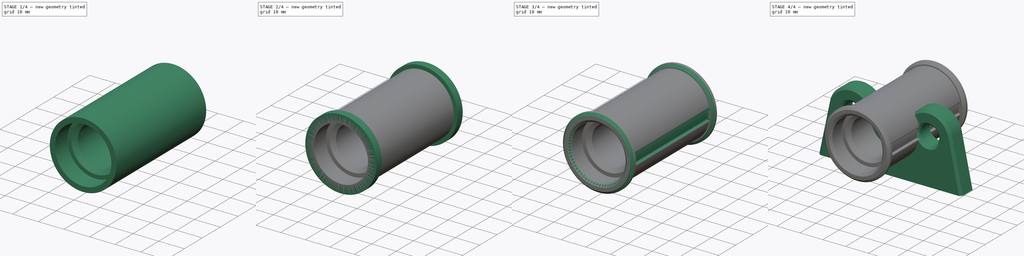
[diagram: build sequence overview — one tinted view per stage of 4, left to right]
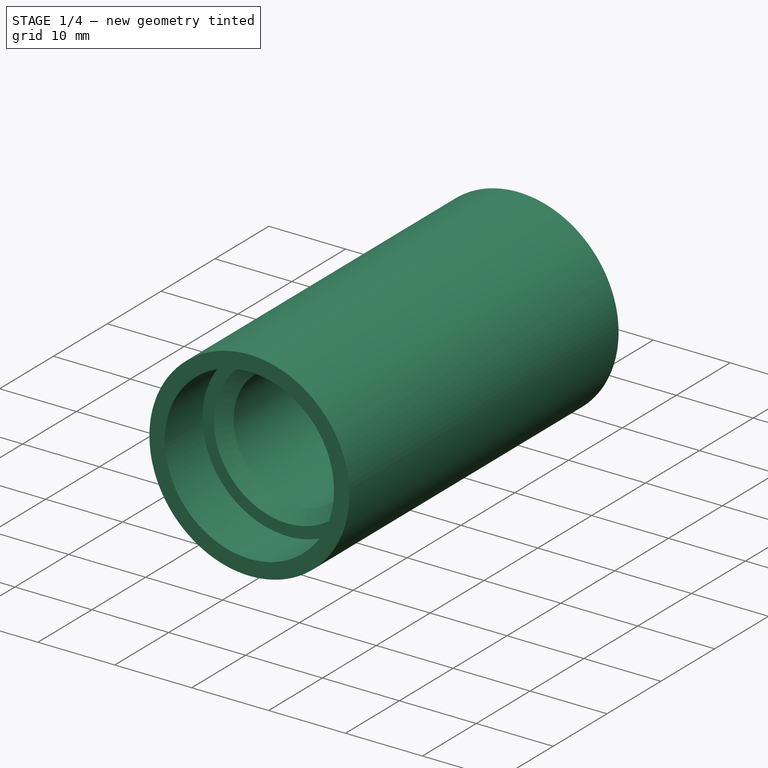
[diagram: stage 1 of 4 — iso view after this stage's code; geometry added in this stage tinted green]
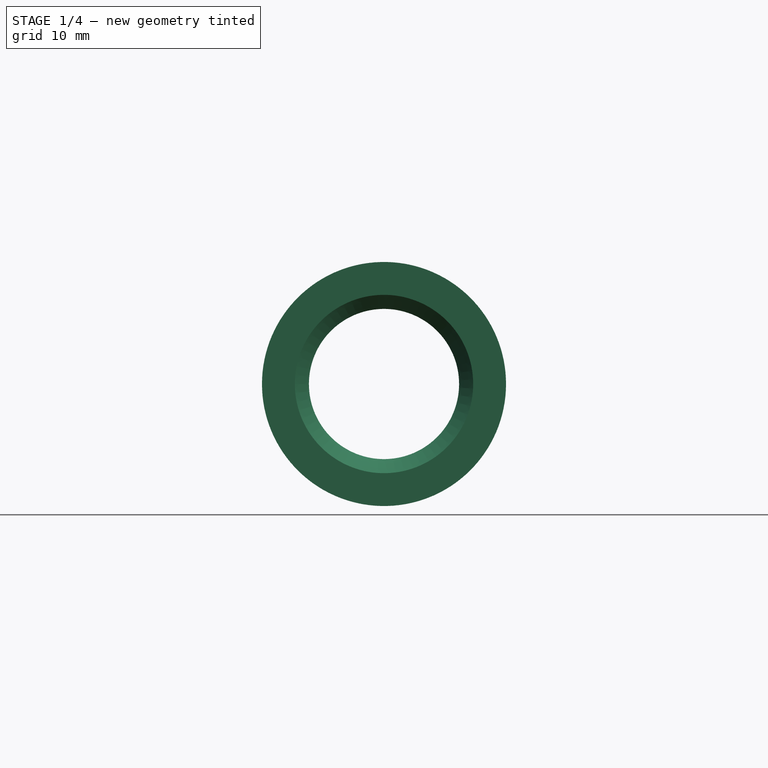
[diagram: stage 1 of 4 — front view after this stage's code; geometry added in this stage tinted green]
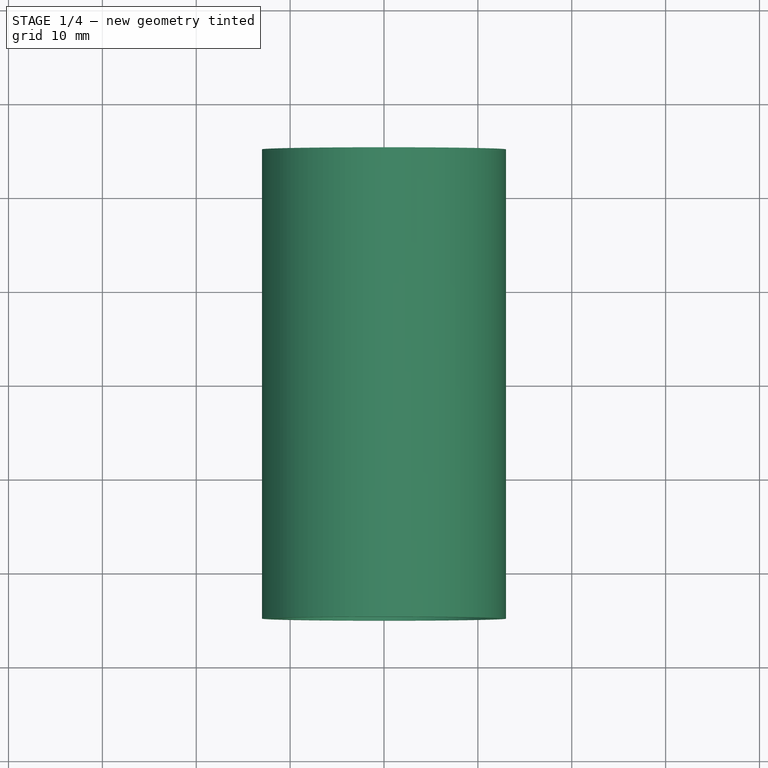
[diagram: stage 1 of 4 — top view after this stage's code; geometry added in this stage tinted green]
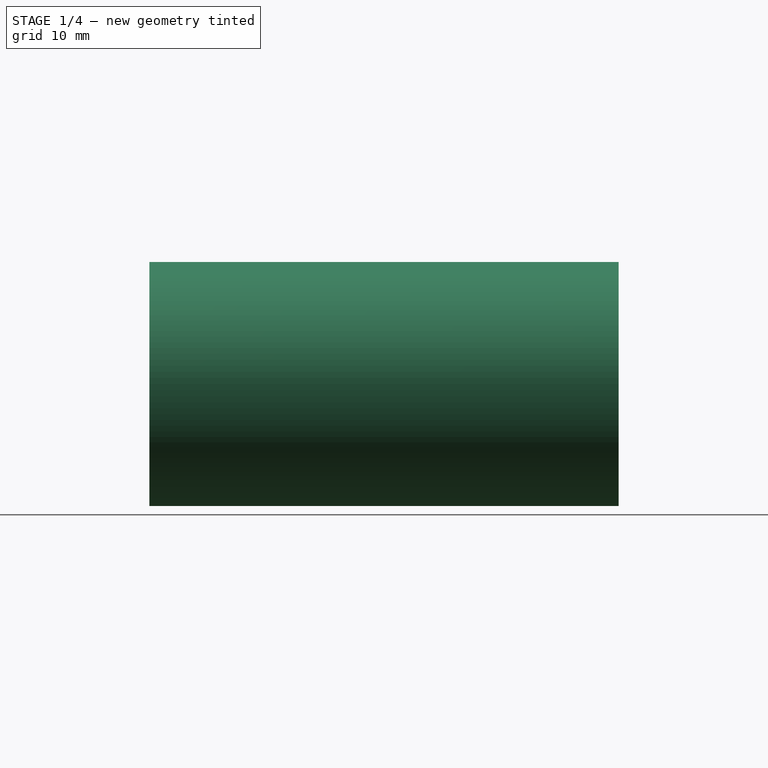
[diagram: stage 1 of 4 — right view after this stage's code; geometry added in this stage tinted green]
FCSTD DOCUMENT  (FreeCAD 2023.321R14555 (Git shallow))
Label: support-wheels-robots
License: Creative Commons Attribution-NoDerivatives
LicenseURL: http://creativecommons.org/licenses/by-nd/4.0/
objects: Sketcher::SketchObject×4, PartDesign::Chamfer×3, PartDesign::Revolution×2, App::Link×2, PartDesign::Body×2, PartDesign::Mirrored×1, PartDesign::Groove×1, PartDesign::Fillet×1, PartDesign::Pad×1, App::Part×1
note: 37 computed .brp shape members not serialized (recipe doc carries the construction recipe); baked Part::Feature solids carry a one-line shape summary decoded from their .brp

FEATURE [Sketcher::SketchObject] Sketch
  ArcFitTolerance = 1e-06
  AttachmentSupport = -> [XY_Plane]
  ExternalBSplineMaxDegree = 5
  ExternalBSplineTolerance = 0.0001
  FixShape = 1
  FullyConstrained = true
  InternalTolerance = 1e-06
  InvalidShape = false
  MakeInternals = true
  MapMode = 5
  Support = -> [XY_Plane]
  TreeRank = 11
  ValidateShape = false
  sketch-geometry (8):
    g0: LineSegment StartX=-13 StartY=-25 StartZ=0 EndX=-13 EndY=25 EndZ=0
    g1: LineSegment StartX=-13 StartY=25 StartZ=0 EndX=-11 EndY=25 EndZ=0
    g2: LineSegment StartX=-11 StartY=25 StartZ=0 EndX=-11 EndY=18 EndZ=0
    g3: LineSegment StartX=-11 StartY=18 StartZ=0 EndX=-8 EndY=18 EndZ=0
    g4: LineSegment StartX=-8 StartY=18 StartZ=0 EndX=-8 EndY=-18 EndZ=0
    g5: LineSegment StartX=-8 StartY=-18 StartZ=0 EndX=-11 EndY=-18 EndZ=0
    g6: LineSegment StartX=-11 StartY=-18 StartZ=0 EndX=-11 EndY=-25 EndZ=0
    g7: LineSegment StartX=-11 StartY=-25 StartZ=0 EndX=-13 EndY=-25 EndZ=0
  constraints (22):
    c: Coincident(g1,g0)
    c: Horizontal(g1)
    c: Coincident(g2,g1)
    c: Vertical(g2)
    c: Coincident(g3,g2)
    c: Horizontal(g3)
    c: Coincident(g4,g3)
    c: Coincident(g5,g4)
    c: Horizontal(g5)
    c: Coincident(g6,g5)
    c: Vertical(g6)
    c: Coincident(g7,g6)
    c: Coincident(g7,g0)
    c: Symmetric(g4,g3,g-1)
    c: Symmetric(g0,g0,g-1)
    c: Horizontal(g7)
    c: DistanceX(g1,g-1) = 11
    c: Equal(g7,g1)
    c: DistanceX(g0,g-1) = 13
    c: DistanceY(g0,g0) = 50
    c: DistanceY(g2,g2) = 7
    c: DistanceX(g3,g-1) = 8
FEATURE [PartDesign::Revolution] Revolution
  AddSubType = 0
  Angle = 360
  Axis = (0,1,0)
  Base = (0,0,0)
  ClaimChildren = false
  Fit = 0
  FitJoin = 0
  FixShape = 1
  InnerFit = 0
  InnerFitJoin = 0
  InvalidShape = false
  Linearize = true
  NewSolid = false
  Profile = -> Sketch
  ReferenceAxis = -> Sketch [V_Axis]
  Refine = true
  Suppress = false
  TreeRank = 12
  ValidateShape = false
  _ProfileBasedVersion = 1
FEATURE [PartDesign::Chamfer] Chamfer
  AddSubType = 0
  Angle = 45
  Base = -> Revolution [Edge9,Edge7]
  BaseFeature = -> Revolution
  ChamferType = 0
  FixShape = 1
  FlipDirection = false
  InvalidShape = false
  NewSolid = false
  Refine = true
  Size = 1.5
  Size2 = 1
  SupportTransform = false
  Suppress = false
  TreeRank = 13
  ValidateShape = false
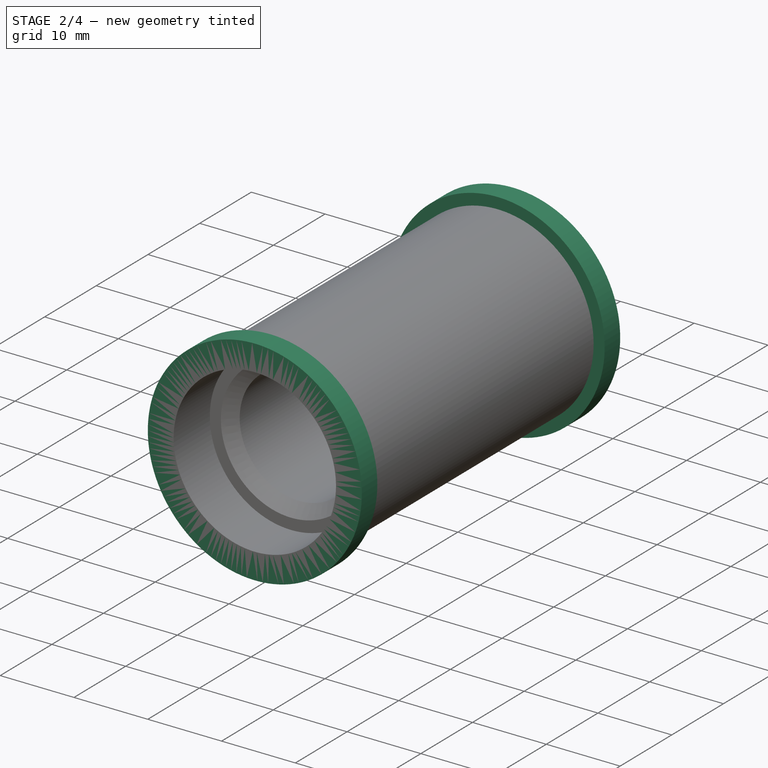
[diagram: stage 2 of 4 — iso view after this stage's code; geometry added in this stage tinted green]
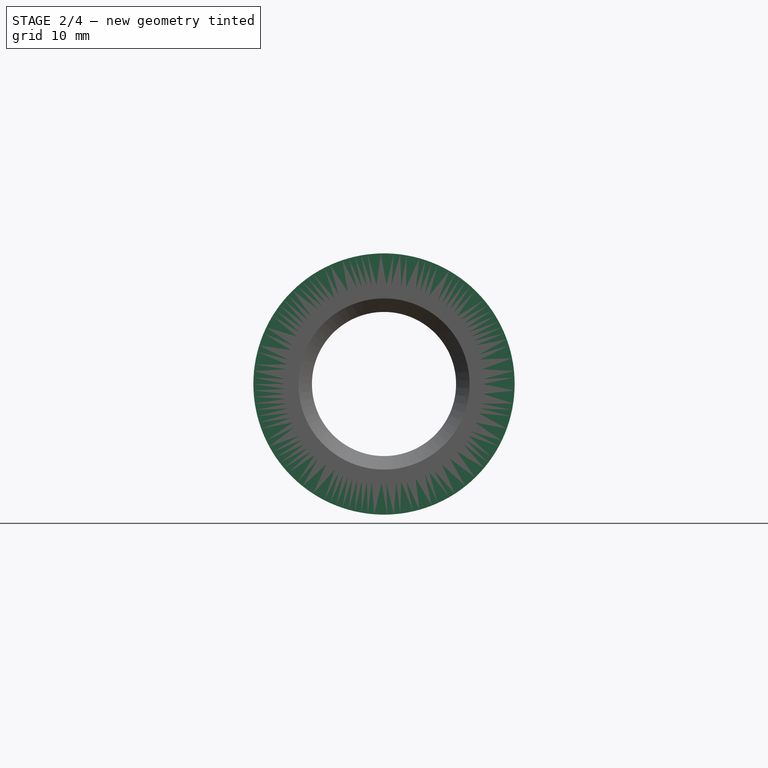
[diagram: stage 2 of 4 — front view after this stage's code; geometry added in this stage tinted green]
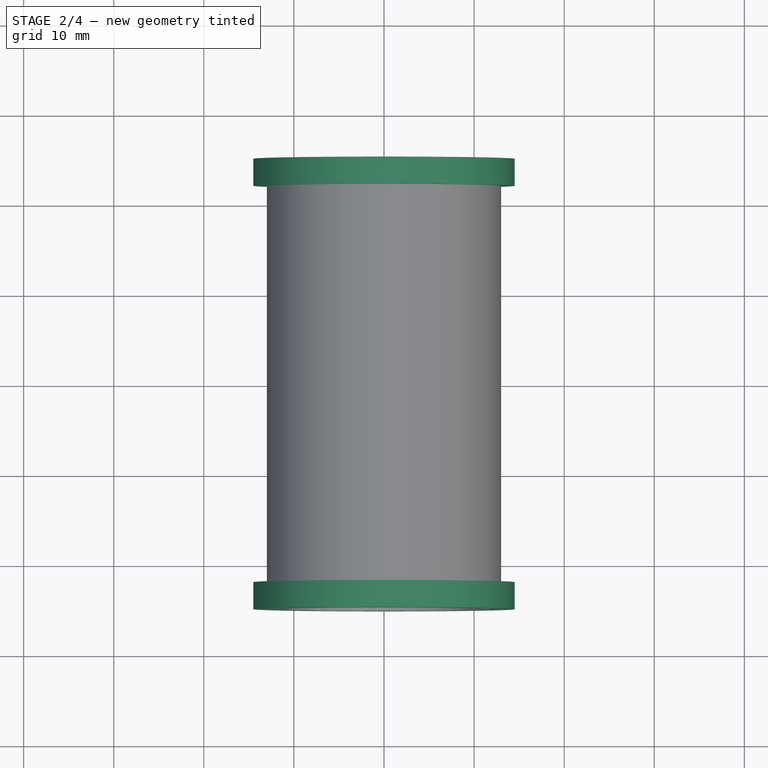
[diagram: stage 2 of 4 — top view after this stage's code; geometry added in this stage tinted green]
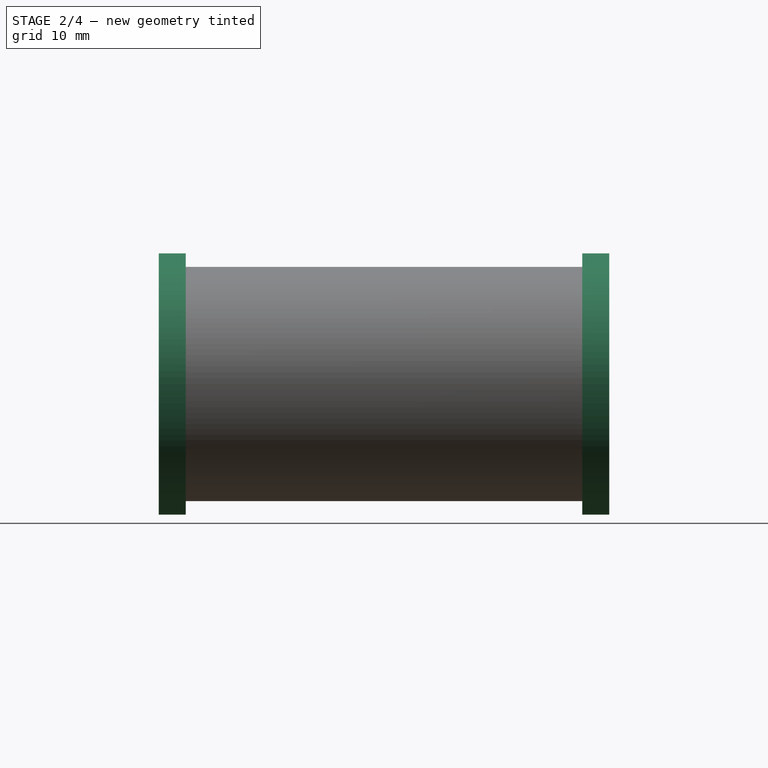
[diagram: stage 2 of 4 — right view after this stage's code; geometry added in this stage tinted green]
FEATURE [Sketcher::SketchObject] Sketch001
  ArcFitTolerance = 1e-06
  AttachmentSupport = -> [XY_Plane]
  ExternalBSplineMaxDegree = 5
  ExternalBSplineTolerance = 0.0001
  ExternalGeometry = -> [Chamfer]
  FixShape = 1
  FullyConstrained = true
  InternalTolerance = 1e-06
  InvalidShape = false
  MakeInternals = true
  MapMode = 5
  Support = -> [XY_Plane]
  TreeRank = 14
  ValidateShape = false
  sketch-geometry (4):
    g0: LineSegment StartX=-13 StartY=25 StartZ=0 EndX=-14.5 EndY=25 EndZ=0
    g1: LineSegment StartX=-14.5 StartY=25 StartZ=0 EndX=-14.5 EndY=22 EndZ=0
    g2: LineSegment StartX=-14.5 StartY=22 StartZ=0 EndX=-13 EndY=22 EndZ=0
    g3: LineSegment StartX=-13 StartY=22 StartZ=0 EndX=-13 EndY=25 EndZ=0
  constraints (11):
    c: Coincident(g0,g1)
    c: Coincident(g1,g2)
    c: Coincident(g2,g3)
    c: Coincident(g3,g0)
    c: Horizontal(g0)
    c: Horizontal(g2)
    c: Vertical(g1)
    c: Vertical(g3)
    c: Coincident(g0,g-3)
    c: DistanceX(g0,g0) = 1.5
    c: DistanceY(g1,g1) = 3
FEATURE [PartDesign::Revolution] Revolution001
  AddSubType = 0
  Angle = 360
  Axis = (0,1,0)
  Base = (0,0,0)
  BaseFeature = -> Chamfer
  ClaimChildren = false
  Fit = 0
  FitJoin = 0
  FixShape = 1
  InnerFit = 0
  InnerFitJoin = 0
  InvalidShape = false
  Linearize = true
  NewSolid = false
  Profile = -> Sketch001
  ReferenceAxis = -> Sketch001 [V_Axis]
  Refine = true
  Suppress = false
  TreeRank = 15
  ValidateShape = false
  _ProfileBasedVersion = 1
FEATURE [PartDesign::Mirrored] Mirrored
  AddSubType = 0
  BaseFeature = -> Revolution001
  CopyShape = false
  FixShape = 1
  InvalidShape = false
  MirrorPlane = -> XZ_Plane
  NewSolid = false
  OriginalSubs = -> [Revolution001]
  Originals = -> [Revolution001]
  ParallelTransform = true
  Refine = true
  SubTransform = true
  Suppress = false
  TreeRank = 16
  ValidateShape = false
  _Version = 3
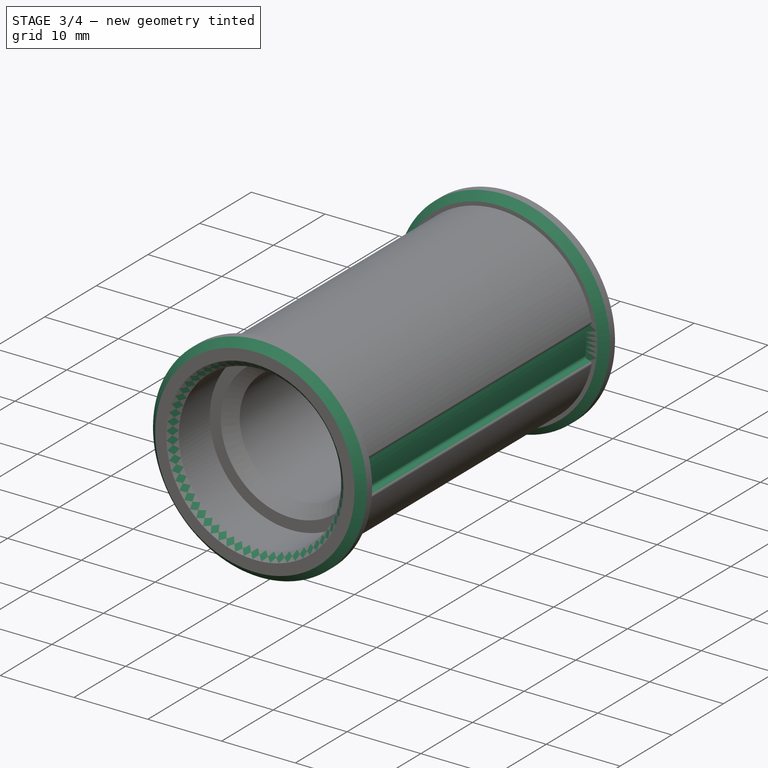
[diagram: stage 3 of 4 — iso view after this stage's code; geometry added in this stage tinted green]
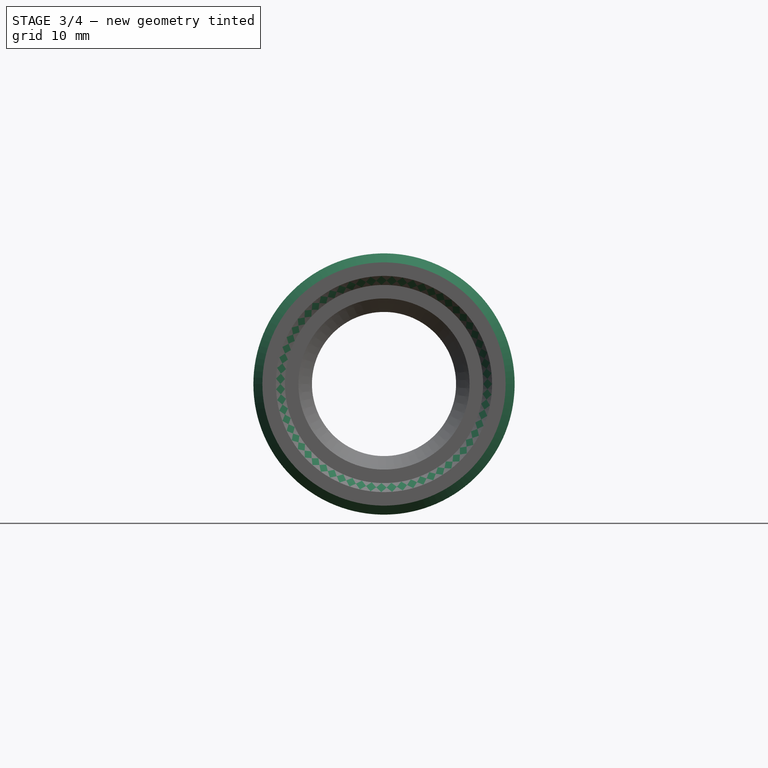
[diagram: stage 3 of 4 — front view after this stage's code; geometry added in this stage tinted green]
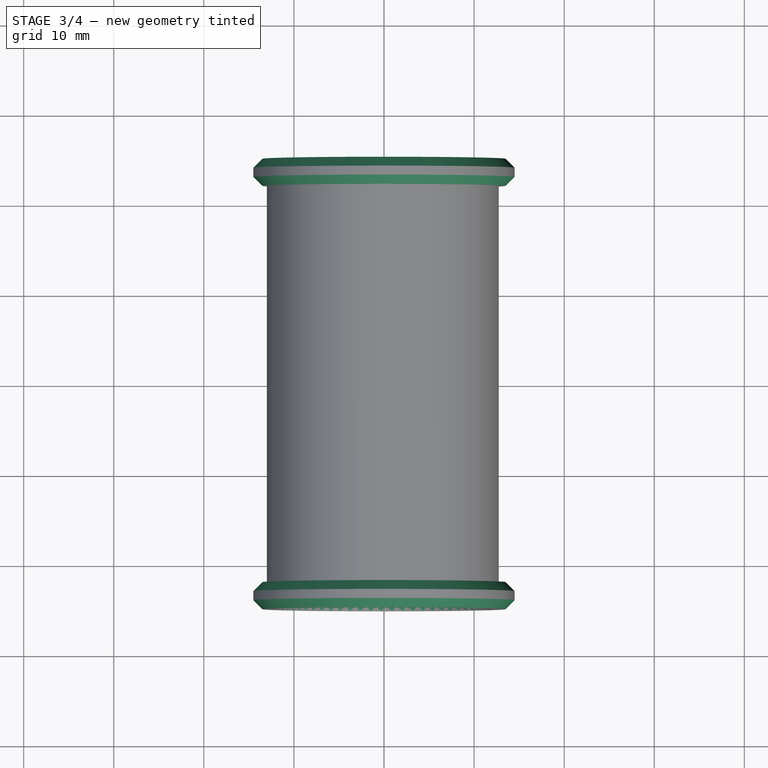
[diagram: stage 3 of 4 — top view after this stage's code; geometry added in this stage tinted green]
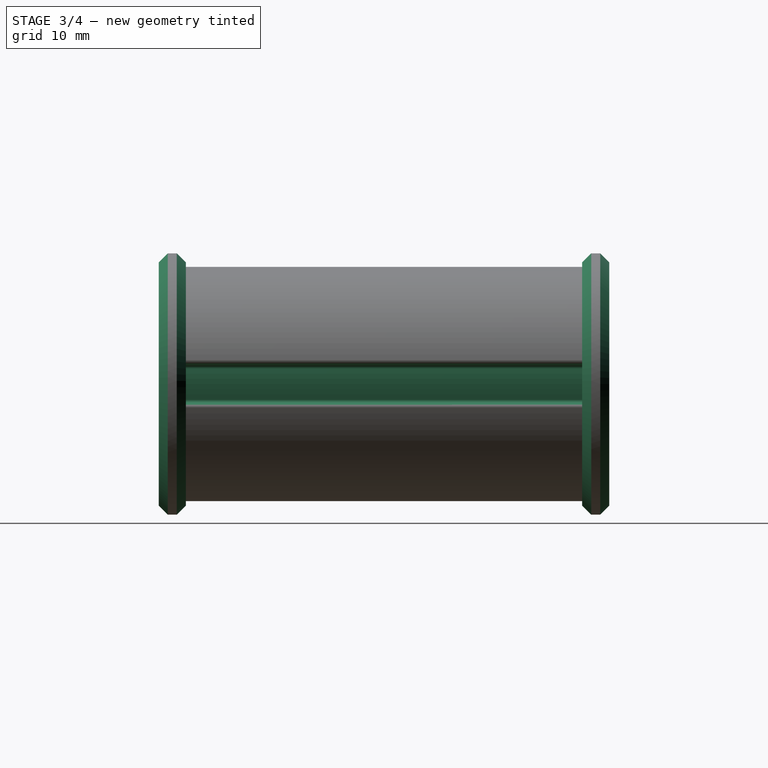
[diagram: stage 3 of 4 — right view after this stage's code; geometry added in this stage tinted green]
FEATURE [Sketcher::SketchObject] Sketch002
  ArcFitTolerance = 1e-06
  AttachmentSupport = -> [XY_Plane]
  ExternalBSplineMaxDegree = 5
  ExternalBSplineTolerance = 0.0001
  ExternalGeometry = -> [Mirrored]
  FixShape = 1
  FullyConstrained = true
  InternalTolerance = 1e-06
  InvalidShape = false
  MakeInternals = true
  MapMode = 5
  Support = -> [XY_Plane]
  TreeRank = 17
  ValidateShape = false
  sketch-geometry (5):
    g0: LineSegment StartX=12 StartY=-22 StartZ=0 EndX=12 EndY=22 EndZ=0
    g1: LineSegment StartX=12 StartY=22 StartZ=0 EndX=15 EndY=22 EndZ=0
    g2: LineSegment StartX=15 StartY=22 StartZ=0 EndX=15 EndY=-22 EndZ=0
    g3: LineSegment StartX=15 StartY=-22 StartZ=0 EndX=12 EndY=-22 EndZ=0
    g4: GeomPoint [constr] X=13.5 Y=0 Z=0
  constraints (13):
    c: Coincident(g0,g1)
    c: Coincident(g1,g2)
    c: Coincident(g2,g3)
    c: Coincident(g3,g0)
    c: Horizontal(g1)
    c: Horizontal(g3)
    c: Vertical(g0)
    c: Vertical(g2)
    c: Symmetric(g1,g0,g4)
    c: PointOnObject(g4,g-1)
    c: DistanceX(g1) = 15
    c: PointOnObject(g1,g-3)
    c: DistanceX(g1,g1) = 3
FEATURE [PartDesign::Groove] Groove
  AddSubType = 1
  Angle = 20
  Axis = (0,1,0)
  Base = (0,0,0)
  BaseFeature = -> Mirrored
  ClaimChildren = false
  Fit = 0
  FitJoin = 0
  FixShape = 1
  InnerFit = 0
  InnerFitJoin = 0
  InvalidShape = false
  Linearize = true
  Midplane = true
  NewSolid = false
  Profile = -> Sketch002
  ReferenceAxis = -> Sketch002 [V_Axis]
  Refine = true
  Suppress = false
  TreeRank = 18
  ValidateShape = false
  _ProfileBasedVersion = 1
FEATURE [PartDesign::Fillet] Fillet
  AddSubType = 0
  Base = -> Groove [Edge34,Edge30,Edge29,Edge33]
  BaseFeature = -> Groove
  FixShape = 1
  InvalidShape = false
  NewSolid = false
  Radius = 0.4
  Refine = true
  SupportTransform = false
  Suppress = false
  TreeRank = 19
  ValidateShape = false
FEATURE [PartDesign::Body] Body001  label="SupportRouleau"
  AutoGroupSolids = false
  ClaimAllChildren = false
  ExportMode = 0
  FixShape = 1
  Group = -> [Sketch003,Pad,Chamfer001]
  InvalidShape = false
  Origin = -> Origin001
  Placement = pos=(0,-32,0) rot=(0,0,1;0rad)
  SingleSolid = true
  Tip = -> Chamfer001
  TreeRank = 30
  ValidateShape = false
  _ExportChildren = -> [Pad,Chamfer001]
  _GroupVersion = 1
FEATURE [PartDesign::Chamfer] Chamfer002
  AddSubType = 0
  Angle = 45
  Base = -> Fillet [Edge31,Edge37,Edge35,Edge40,Edge12,Edge33]
  BaseFeature = -> Fillet
  ChamferType = 0
  FixShape = 1
  FlipDirection = false
  InvalidShape = false
  NewSolid = false
  Refine = true
  Size = 1
  Size2 = 1
  SupportTransform = false
  Suppress = false
  TreeRank = 36
  ValidateShape = false
FEATURE [PartDesign::Body] Body  label="Rouleau"
  AutoGroupSolids = false
  ClaimAllChildren = false
  ExportMode = 0
  FixShape = 1
  Group = -> [Sketch,Revolution,Chamfer,Sketch001,Revolution001,Mirrored,Sketch002,Groove,Fillet,Chamfer002]
  InvalidShape = false
  Origin = -> Origin
  Placement = pos=(16.89,0,0) rot=(0,0,1;0rad)
  SingleSolid = true
  Tip = -> Chamfer002
  TreeRank = 10
  ValidateShape = false
  _ExportChildren = -> [Revolution,Chamfer,Revolution001,Mirrored,Groove,Fillet,Chamfer002]
  _GroupVersion = 1
FEATURE [App::Part] Part  label="ensemble-rouleaux"
  ClaimAllChildren = false
  ExportMode = 1
  Group = -> [Body,Body001,Link,Link001]
  Origin = -> Origin002
  TreeRank = 39
  _ExportChildren = -> [Body,Body001,Link,Link001]
  _GroupVersion = 1
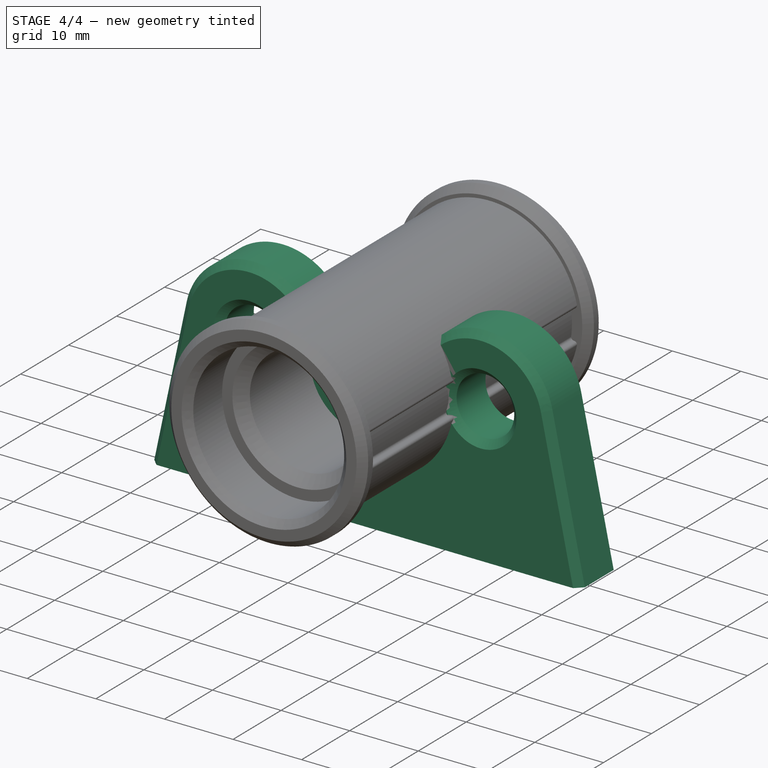
[diagram: stage 4 of 4 — iso view after this stage's code; geometry added in this stage tinted green]
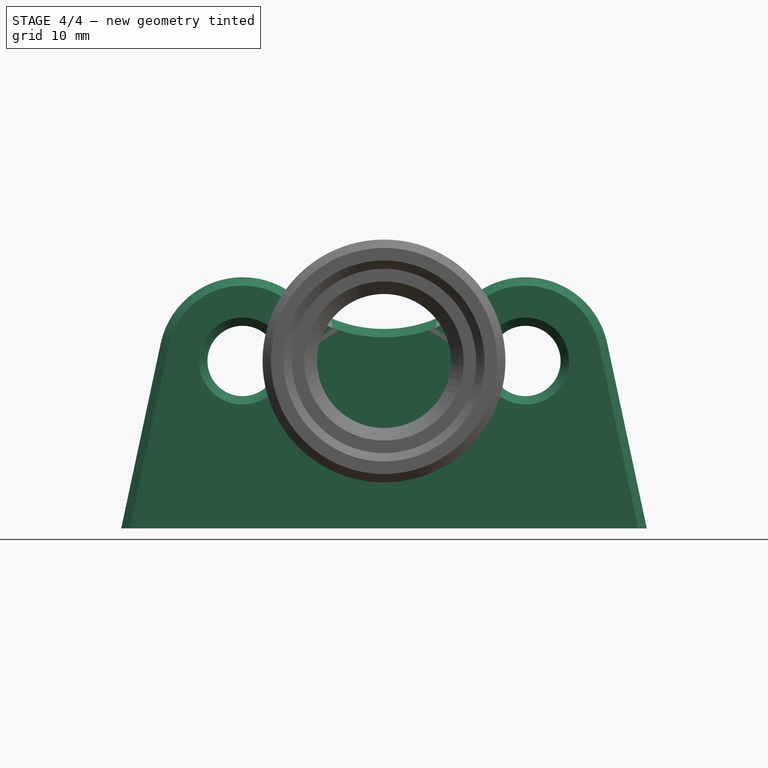
[diagram: stage 4 of 4 — front view after this stage's code; geometry added in this stage tinted green]
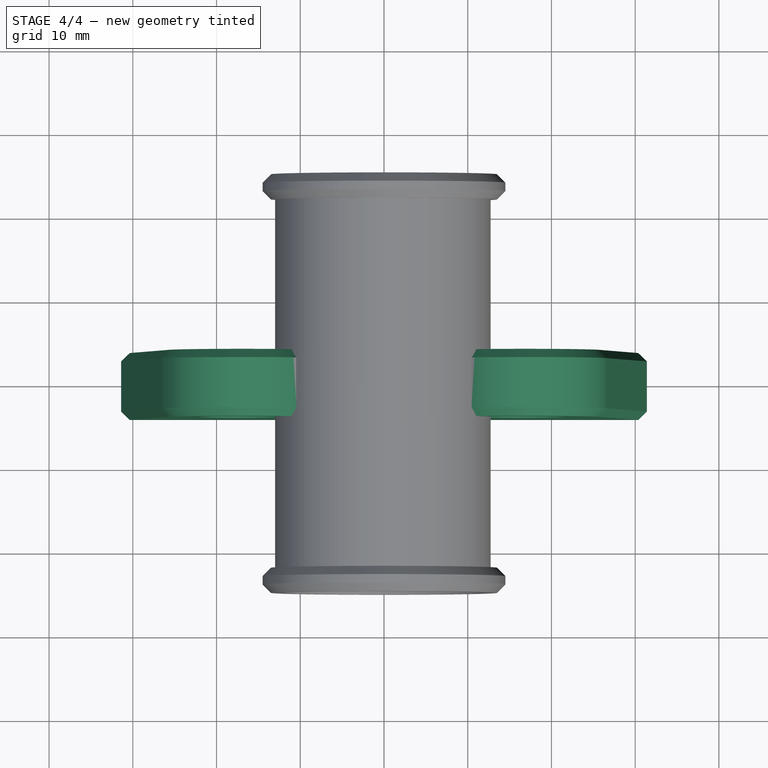
[diagram: stage 4 of 4 — top view after this stage's code; geometry added in this stage tinted green]
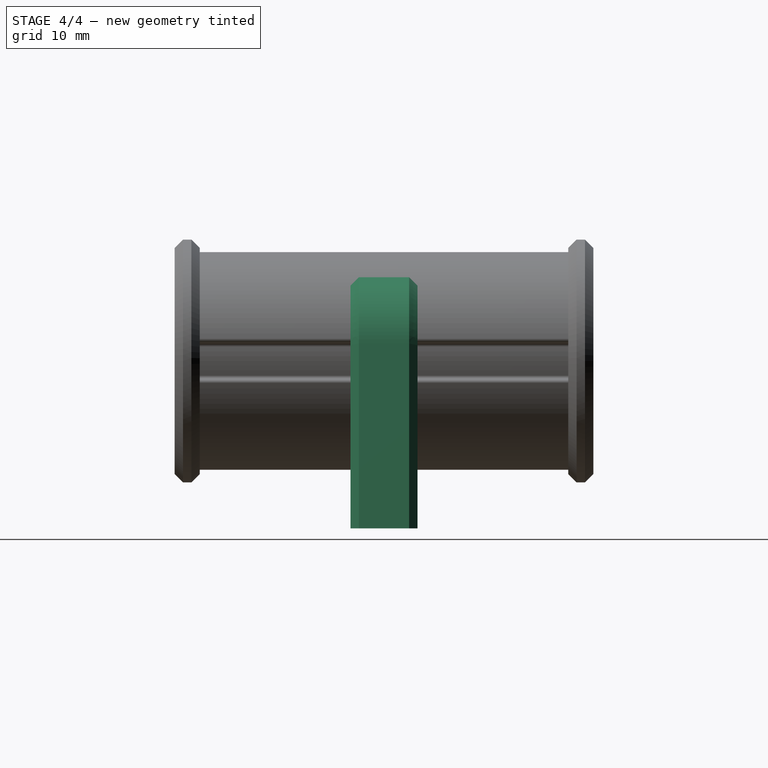
[diagram: stage 4 of 4 — right view after this stage's code; geometry added in this stage tinted green]
FEATURE [Sketcher::SketchObject] Sketch003
  ArcFitTolerance = 1e-06
  AttachmentSupport = -> [XZ_Plane001]
  ExternalBSplineMaxDegree = 5
  ExternalBSplineTolerance = 0.0001
  FixShape = 1
  FullyConstrained = true
  InternalTolerance = 1e-06
  InvalidShape = false
  MakeInternals = true
  MapMode = 5
  Placement = pos=(0,0,0) rot=(1,0,0;1.5708rad)
  Support = -> [XZ_Plane001]
  TreeRank = 31
  ValidateShape = false
  sketch-geometry (14):
    g0: Circle [constr] CenterX=-5.0515e-12 CenterY=39 CenterZ=0 NormalX=0 NormalY=0 NormalZ=1 AngleXU=0 Radius=28
    g1: Circle [constr] CenterX=-16.8893 CenterY=-8.1388e-11 CenterZ=0 NormalX=0 NormalY=0 NormalZ=1 AngleXU=0 Radius=14.5
    g2: Circle [constr] CenterX=16.8893 CenterY=8.41302e-11 CenterZ=0 NormalX=0 NormalY=0 NormalZ=1 AngleXU=0 Radius=14.5
    g3: LineSegment [constr] StartX=-17.9374 StartY=17.5 StartZ=0 EndX=17.9374 EndY=17.5 EndZ=0
    g4: LineSegment [constr] StartX=16.8893 StartY=8.41302e-11 StartZ=0 EndX=16.8893 EndY=14.5 EndZ=0
    g5: Circle CenterX=-16.8893 CenterY=-8.1388e-11 CenterZ=0 NormalX=0 NormalY=0 NormalZ=1 AngleXU=0 Radius=4.2
    g6: Circle CenterX=16.8893 CenterY=8.41302e-11 CenterZ=0 NormalX=0 NormalY=0 NormalZ=1 AngleXU=0 Radius=4.2
    g7: ArcOfCircle CenterX=-16.8893 CenterY=-8.1388e-11 CenterZ=0 NormalX=0 NormalY=0 NormalZ=1 AngleXU=0 Radius=10 StartAngle=0.869523 EndAngle=2.93105
    g8: ArcOfCircle CenterX=16.8893 CenterY=8.41302e-11 CenterZ=0 NormalX=0 NormalY=0 NormalZ=1 AngleXU=0 Radius=10 StartAngle=0.210542 EndAngle=2.27207
    g9: LineSegment StartX=-31.3893 StartY=-20 StartZ=0 EndX=31.3893 EndY=-20 EndZ=0
    g10: LineSegment StartX=-31.3893 StartY=-20 StartZ=0 EndX=-26.6685 EndY=2.0899 EndZ=0
    g11: LineSegment StartX=26.6685 StartY=2.0899 StartZ=0 EndX=31.3893 EndY=-20 EndZ=0
    g12: ArcOfCircle CenterX=-8.39118e-11 CenterY=20 CenterZ=0 NormalX=0 NormalY=0 NormalZ=1 AngleXU=0 Radius=16.1773 StartAngle=4.01112 EndAngle=5.41366
    g13: LineSegment [constr] StartX=31.3893 StartY=-20 StartZ=0 EndX=31.3893 EndY=1.492e-13 EndZ=0
  constraints (35):
    c: PointOnObject(g0,g-2)
    c: Diameter(g0) = 56
    c: Symmetric(g2,g1,g-1)
    c: Equal(g2,g1)
    c: Diameter(g2) = 29
    c: Tangent(g0,g2)
    c: PointOnObject(g3,g0)
    c: PointOnObject(g3,g0)
    c: Horizontal(g3)
    c: DistanceY(g3,g0) = 21.5
    c: Coincident(g4,g2)
    c: PointOnObject(g4,g2)
    c: Vertical(g4)
    c: DistanceY(g4,g3) = 3
    c: Coincident(g5,g1)
    c: Coincident(g6,g2)
    c: Equal(g6,g5)
    c: Diameter(g6) = 8.4
    c: Coincident(g7,g5)
    c: Coincident(g8,g6)
    c: Symmetric(g9,g9,g-2)
    c: Coincident(g10,g9)
    c: Coincident(g11,g9)
    c: Tangent(g11,g8) = 1.5708
    c: Tangent(g10,g7) = 1.5708
    c: Symmetric(g7,g8,g-2)
    c: Tangent(g12,g8) = 1.5708
    c: Tangent(g12,g7) = 1.5708
    c: Radius(g8) = 10
    c: DistanceY(g-1,g12) = 20
    c: Coincident(g13,g9)
    c: PointOnObject(g13,g-1)
    c: Vertical(g13)
    c: PointOnObject(g13,g2)
    c: DistanceY(g9,g-1) = 20
FEATURE [PartDesign::Pad] Pad
  AddSubType = 0
  AlongSketchNormal = false
  AutoTaperInnerAngle = true
  CheckUpToFaceLimits = true
  ClaimChildren = false
  Direction = (0,-1,2e-16)
  Fit = 0
  FitJoin = 0
  FixShape = 1
  InnerFit = 0
  InnerFitJoin = 0
  InvalidShape = false
  Length = 8
  Length2 = 100
  Linearize = true
  Midplane = true
  NewSolid = false
  Profile = -> Sketch003
  Refine = true
  Suppress = false
  TaperInnerAngle = 0
  TaperInnerAngleRev = 0
  TreeRank = 32
  Type = 0
  ValidateShape = false
  _ProfileBasedVersion = 1
FEATURE [App::Link] Link  label="Link(SupportRouleau)"
  AutoLinkLabel = true
  AutoPlacement = true
  LinkPlacement = pos=(0,64,0) rot=(0,0,1;0rad)
  LinkTransform = true
  LinkedObject = -> Body001
  Placement = pos=(0,64,0) rot=(0,0,1;0rad)
  SyncGroupVisibility = false
  TreeRank = 33
  _LinkVersion = 1
FEATURE [App::Link] Link001  label="Link001(Rouleau)"
  AutoLinkLabel = true
  AutoPlacement = true
  LinkPlacement = pos=(-33.78,4.02689e-06,0) rot=(0,0,1;0rad)
  LinkTransform = true
  LinkedObject = -> Body
  Placement = pos=(-33.78,4.02689e-06,0) rot=(0,0,1;0rad)
  SyncGroupVisibility = false
  TreeRank = 34
  _LinkVersion = 1
FEATURE [PartDesign::Chamfer] Chamfer001
  AddSubType = 0
  Angle = 45
  Base = -> Pad [Edge21,Edge20,Edge23,Edge24,Edge18,Edge17]
  BaseFeature = -> Pad
  ChamferType = 0
  FixShape = 1
  FlipDirection = false
  InvalidShape = false
  NewSolid = false
  Refine = true
  Size = 1
  Size2 = 1
  SupportTransform = false
  Suppress = false
  TreeRank = 35
  ValidateShape = false
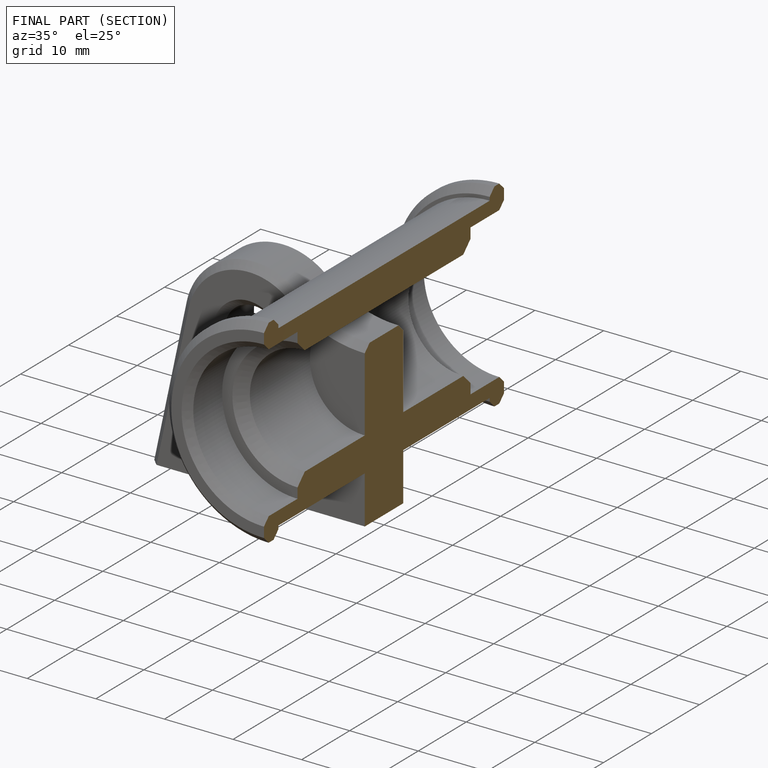
[diagram: finished part — half-section view (interior)]
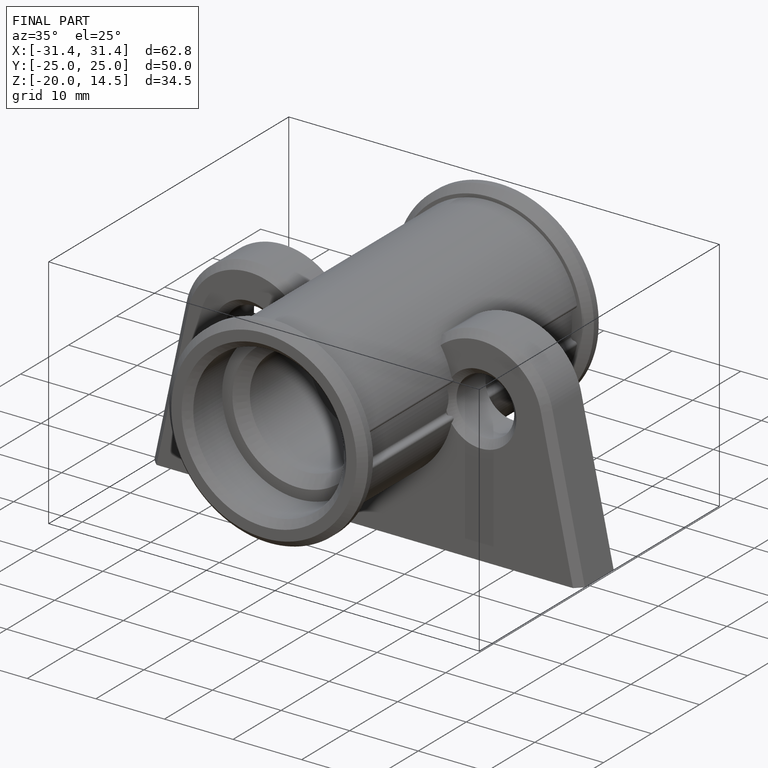
[diagram: finished part — iso view with bounding-box wireframe]
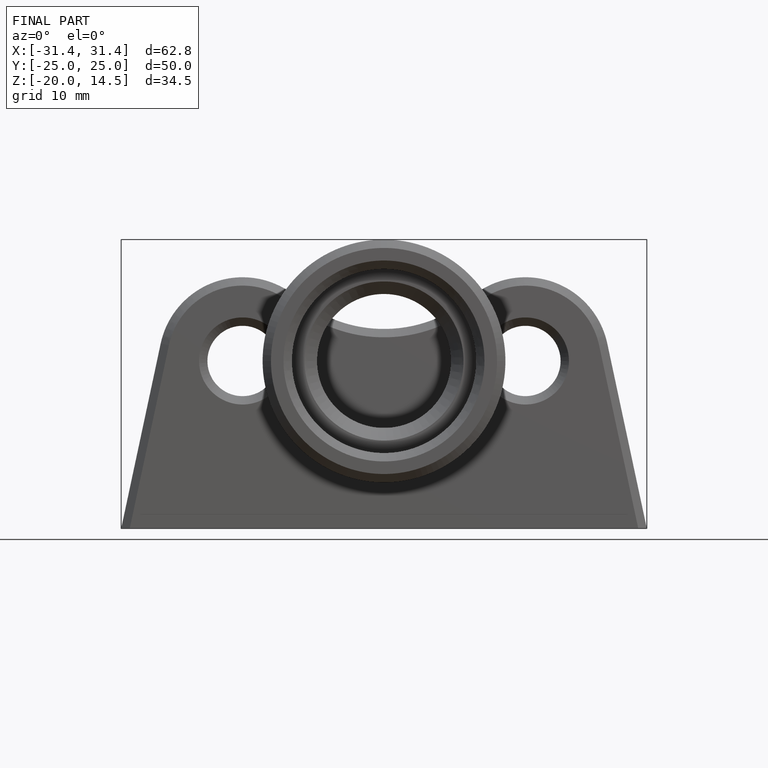
[diagram: finished part — front view with bounding-box wireframe]
